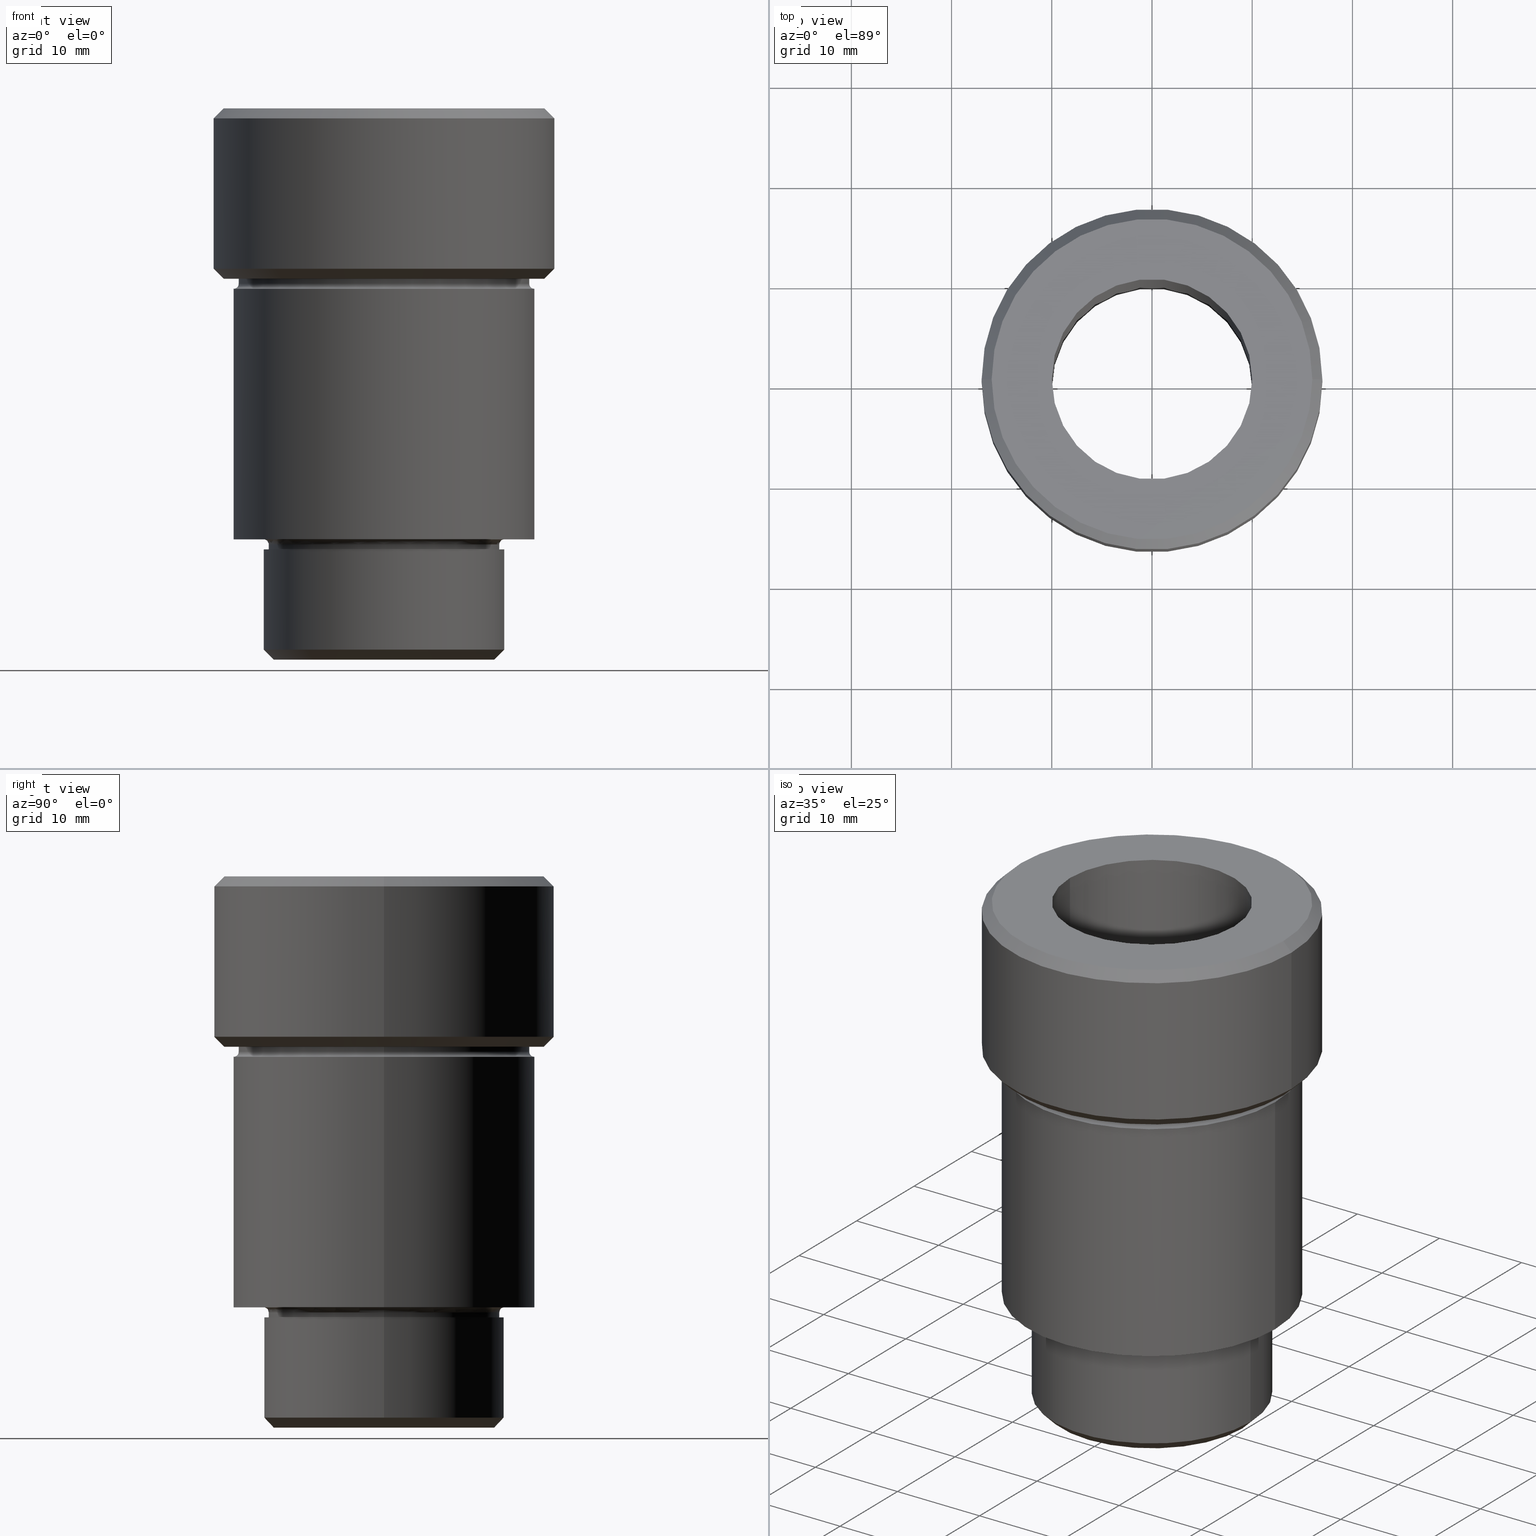
[diagram: canonical four-view strip — front | top / right | iso, engineering-drawing reading convention]
A machine part, canonical four-view strip (front | top / right | iso — engineering-drawing reading convention). The complete STEP part file that produces these views, byte-faithful:
ISO-10303-21;
HEADER;
FILE_DESCRIPTION (( 'STEP AP203' ),
    '1' );
FILE_NAME ('9258.STEP',
    '2024-01-08T12:25:38',
    ( '' ),
    ( '' ),
    'SwSTEP 2.0',
    'SolidWorks 2019',
    '' );
FILE_SCHEMA (( 'CONFIG_CONTROL_DESIGN' ));
ENDSEC;

DATA;
#1 = CARTESIAN_POINT ( 'NONE',  ( 17.00000000000000000, 0.000000000000000000, -16.00000000000001066 ) ) ;
#2 = DIRECTION ( 'NONE',  ( -0.000000000000000000, -0.000000000000000000, 1.000000000000000000 ) ) ;
#3 = DIRECTION ( 'NONE',  ( 1.000000000000000000, 0.000000000000000000, 0.000000000000000000 ) ) ;
#4 = FACE_BOUND ( 'NONE', #265, .T. ) ;
#5 = EDGE_CURVE ( 'NONE', #298, #553, #439, .T. ) ;
#6 = LINE ( 'NONE', #110, #425 ) ;
#7 = LINE ( 'NONE', #565, #424 ) ;
#8 = ORIENTED_EDGE ( 'NONE', *, *, #20, .F. ) ;
#9 = PERSON_AND_ORGANIZATION_ROLE ( 'creator' ) ;
#10 = CARTESIAN_POINT ( 'NONE',  ( -12.00000000000000000, 0.000000000000000000, -43.00000000000000000 ) ) ;
#11 = AXIS2_PLACEMENT_3D ( 'NONE', #159, #119, #176 ) ;
#12 = AXIS2_PLACEMENT_3D ( 'NONE', #413, #170, #606 ) ;
#13 = ORIENTED_EDGE ( 'NONE', *, *, #449, .T. ) ;
#14 = APPROVAL_DATE_TIME ( #446, #703 ) ;
#15 = DIRECTION ( 'NONE',  ( -0.000000000000000000, -0.000000000000000000, 1.000000000000000000 ) ) ;
#16 = DIRECTION ( 'NONE',  ( -0.000000000000000000, -0.000000000000000000, 1.000000000000000000 ) ) ;
#17 = CARTESIAN_POINT ( 'NONE',  ( 10.00000000000000000, 0.000000000000000000, -54.99999999999999289 ) ) ;
#18 = ORIENTED_EDGE ( 'NONE', *, *, #257, .F. ) ;
#19 = LINE ( 'NONE', #529, #710 ) ;
#20 = EDGE_CURVE ( 'NONE', #294, #766, #657, .T. ) ;
#21 = DIRECTION ( 'NONE',  ( -0.7071067811865524577, 8.659560562354993255E-17, 0.7071067811865426878 ) ) ;
#22 = VECTOR ( 'NONE', #404, 1000.000000000000000 ) ;
#23 = AXIS2_PLACEMENT_3D ( 'NONE', #293, #122, #3 ) ;
#24 = VERTEX_POINT ( 'NONE', #533 ) ;
#25 = AXIS2_PLACEMENT_3D ( 'NONE', #124, #779, #289 ) ;
#26 =( GEOMETRIC_REPRESENTATION_CONTEXT ( 3 ) GLOBAL_UNCERTAINTY_ASSIGNED_CONTEXT ( ( #192 ) ) GLOBAL_UNIT_ASSIGNED_CONTEXT ( ( #459, #645, #248 ) ) REPRESENTATION_CONTEXT ( 'NONE', 'WORKASPACE' ) );
#27 = DIRECTION ( 'NONE',  ( -0.000000000000000000, -0.000000000000000000, 1.000000000000000000 ) ) ;
#28 = DIRECTION ( 'NONE',  ( 1.000000000000000000, 0.000000000000000000, 0.000000000000000000 ) ) ;
#29 = DATE_TIME_ROLE ( 'creation_date' ) ;
#30 = ORIENTED_EDGE ( 'NONE', *, *, #406, .F. ) ;
#31 = EDGE_CURVE ( 'NONE', #553, #53, #467, .T. ) ;
#32 = ORIENTED_EDGE ( 'NONE', *, *, #401, .T. ) ;
#33 = DIRECTION ( 'NONE',  ( 0.000000000000000000, 0.000000000000000000, -1.000000000000000000 ) ) ;
#34 = CARTESIAN_POINT ( 'NONE',  ( -12.00000000000000355, 1.469576158976824342E-15, 0.000000000000000000 ) ) ;
#35 = EDGE_LOOP ( 'NONE', ( #91, #513, #18, #74 ) ) ;
#36 = MECHANICAL_CONTEXT ( 'NONE', #51, 'mechanical' ) ;
#37 = ORIENTED_EDGE ( 'NONE', *, *, #290, .F. ) ;
#38 = AXIS2_PLACEMENT_3D ( 'NONE', #307, #260, #692 ) ;
#39 = VECTOR ( 'NONE', #229, 1000.000000000000000 ) ;
#40 = ORIENTED_EDGE ( 'NONE', *, *, #759, .F. ) ;
#41 = FACE_OUTER_BOUND ( 'NONE', #133, .T. ) ;
#42 = CARTESIAN_POINT ( 'NONE',  ( 0.000000000000000000, 0.000000000000000000, -16.00000000000001066 ) ) ;
#43 = ADVANCED_FACE ( 'NONE', ( #177 ), #218, .T. ) ;
#44 = VECTOR ( 'NONE', #544, 999.9999999999998863 ) ;
#45 = CONICAL_SURFACE ( 'NONE', #194, 17.00000000000000000, 0.7853981633974536081 ) ;
#46 = LOCAL_TIME ( 13, 25, 38.00000000000000000, #386 ) ;
#47 = CALENDAR_DATE ( 2024, 8, 1 ) ;
#48 = EDGE_LOOP ( 'NONE', ( #505, #314, #588, #161 ) ) ;
#49 = DIRECTION ( 'NONE',  ( -0.000000000000000000, -0.000000000000000000, 1.000000000000000000 ) ) ;
#50 = EDGE_CURVE ( 'NONE', #695, #103, #562, .T. ) ;
#51 = APPLICATION_CONTEXT ( 'configuration controlled 3d designs of mechanical parts and assemblies' ) ;
#52 = DIRECTION ( 'NONE',  ( 0.7071067811865512365, 0.000000000000000000, 0.7071067811865439090 ) ) ;
#53 = VERTEX_POINT ( 'NONE', #557 ) ;
#54 = FACE_OUTER_BOUND ( 'NONE', #388, .T. ) ;
#55 = EDGE_CURVE ( 'NONE', #190, #766, #316, .T. ) ;
#56 = ORIENTED_EDGE ( 'NONE', *, *, #655, .F. ) ;
#57 = CARTESIAN_POINT ( 'NONE',  ( -12.00000000000000000, 0.000000000000000000, -43.50000000000000000 ) ) ;
#58 = AXIS2_PLACEMENT_3D ( 'NONE', #753, #445, #503 ) ;
#59 = CIRCLE ( 'NONE', #71, 11.50000000000000178 ) ;
#60 = EDGE_CURVE ( 'NONE', #699, #190, #678, .T. ) ;
#61 = DIRECTION ( 'NONE',  ( -0.000000000000000000, -1.000000000000000000, -0.000000000000000000 ) ) ;
#62 = DIRECTION ( 'NONE',  ( 1.000000000000000000, 0.000000000000000000, 0.000000000000000000 ) ) ;
#63 = ORIENTED_EDGE ( 'NONE', *, *, #243, .T. ) ;
#64 = DIRECTION ( 'NONE',  ( 0.000000000000000000, 0.000000000000000000, -1.000000000000000000 ) ) ;
#65 = DIRECTION ( 'NONE',  ( 1.000000000000000000, 0.000000000000000000, 0.000000000000000000 ) ) ;
#66 = ORIENTED_EDGE ( 'NONE', *, *, #655, .T. ) ;
#67 = DIRECTION ( 'NONE',  ( -0.000000000000000000, -0.000000000000000000, 1.000000000000000000 ) ) ;
#68 = LINE ( 'NONE', #556, #479 ) ;
#69 = AXIS2_PLACEMENT_3D ( 'NONE', #357, #483, #561 ) ;
#70 = DIRECTION ( 'NONE',  ( -0.000000000000000000, -0.000000000000000000, 1.000000000000000000 ) ) ;
#71 = AXIS2_PLACEMENT_3D ( 'NONE', #372, #15, #638 ) ;
#72 = ADVANCED_FACE ( 'NONE', ( #126 ), #362, .T. ) ;
#73 = DIRECTION ( 'NONE',  ( -0.000000000000000000, -0.000000000000000000, 1.000000000000000000 ) ) ;
#74 = ORIENTED_EDGE ( 'NONE', *, *, #647, .F. ) ;
#75 = DIRECTION ( 'NONE',  ( 1.000000000000000000, 0.000000000000000000, 0.000000000000000000 ) ) ;
#76 = CARTESIAN_POINT ( 'NONE',  ( 0.000000000000000000, 0.000000000000000000, -43.50000000000000000 ) ) ;
#77 = DIRECTION ( 'NONE',  ( 1.000000000000000000, 0.000000000000000000, 0.000000000000000000 ) ) ;
#78 = DIRECTION ( 'NONE',  ( -0.000000000000000000, -0.000000000000000000, 1.000000000000000000 ) ) ;
#79 = COORDINATED_UNIVERSAL_TIME_OFFSET ( 1, 0, .AHEAD. ) ;
#80 = CIRCLE ( 'NONE', #717, 12.00000000000000000 ) ;
#81 = EDGE_CURVE ( 'NONE', #294, #699, #180, .T. ) ;
#82 = AXIS2_PLACEMENT_3D ( 'NONE', #520, #16, #250 ) ;
#83 = AXIS2_PLACEMENT_3D ( 'NONE', #259, #509, #315 ) ;
#84 = APPROVAL_PERSON_ORGANIZATION ( #303, #703, #636 ) ;
#85 = FACE_BOUND ( 'NONE', #747, .T. ) ;
#86 = PERSON_AND_ORGANIZATION_ROLE ( 'design_supplier' ) ;
#87 = EDGE_LOOP ( 'NONE', ( #210, #253 ) ) ;
#88 = EDGE_LOOP ( 'NONE', ( #786, #715 ) ) ;
#89 = DIRECTION ( 'NONE',  ( 1.000000000000000000, 0.000000000000000000, 0.000000000000000000 ) ) ;
#90 = VERTEX_POINT ( 'NONE', #432 ) ;
#91 = ORIENTED_EDGE ( 'NONE', *, *, #406, .T. ) ;
#92 = DIRECTION ( 'NONE',  ( 1.000000000000000000, 0.000000000000000000, 0.000000000000000000 ) ) ;
#93 = CARTESIAN_POINT ( 'NONE',  ( 0.000000000000000000, 0.000000000000000000, -44.00000000000000000 ) ) ;
#94 = PERSON_AND_ORGANIZATION ( #429, #582 ) ;
#95 = CARTESIAN_POINT ( 'NONE',  ( -10.00000000000000000, 1.224646799147353256E-15, -54.99999999999999289 ) ) ;
#96 = CIRCLE ( 'NONE', #142, 12.00000000000000178 ) ;
#97 = DIRECTION ( 'NONE',  ( 0.000000000000000000, 0.000000000000000000, -1.000000000000000000 ) ) ;
#98 = CONICAL_SURFACE ( 'NONE', #776, 17.00000000000000000, 0.7853981633974536081 ) ;
#99 = CC_DESIGN_APPROVAL ( #703, ( #773 ) ) ;
#100 = EDGE_CURVE ( 'NONE', #53, #216, #80, .T. ) ;
#101 = ORIENTED_EDGE ( 'NONE', *, *, #243, .F. ) ;
#102 = EDGE_CURVE ( 'NONE', #490, #90, #788, .T. ) ;
#103 = VERTEX_POINT ( 'NONE', #489 ) ;
#104 = CARTESIAN_POINT ( 'NONE',  ( 0.000000000000000000, 0.000000000000000000, -16.00000000000001066 ) ) ;
#105 = AXIS2_PLACEMENT_3D ( 'NONE', #676, #2, #410 ) ;
#106 = CIRCLE ( 'NONE', #570, 14.49999999999999822 ) ;
#107 = ORIENTED_EDGE ( 'NONE', *, *, #5, .F. ) ;
#108 = EDGE_CURVE ( 'NONE', #311, #136, #626, .T. ) ;
#109 = CARTESIAN_POINT ( 'NONE',  ( -15.99999999999999289, 0.000000000000000000, 0.000000000000000000 ) ) ;
#110 = CARTESIAN_POINT ( 'NONE',  ( 17.00000000000000000, 0.000000000000000000, 0.000000000000000000 ) ) ;
#111 = CARTESIAN_POINT ( 'NONE',  ( -17.00000000000000000, 2.081899558550500280E-15, -1.000000000000011324 ) ) ;
#112 = CARTESIAN_POINT ( 'NONE',  ( 0.000000000000000000, 0.000000000000000000, -54.99999999999999289 ) ) ;
#113 = ADVANCED_FACE ( 'NONE', ( #172 ), #454, .F. ) ;
#114 = CARTESIAN_POINT ( 'NONE',  ( 0.000000000000000000, 0.000000000000000000, 0.000000000000000000 ) ) ;
#115 = CARTESIAN_POINT ( 'NONE',  ( 0.000000000000000000, 0.000000000000000000, -43.00000000000000000 ) ) ;
#116 = ORIENTED_EDGE ( 'NONE', *, *, #732, .F. ) ;
#117 = FACE_OUTER_BOUND ( 'NONE', #226, .T. ) ;
#118 = AXIS2_PLACEMENT_3D ( 'NONE', #530, #769, #465 ) ;
#119 = DIRECTION ( 'NONE',  ( 0.000000000000000000, -1.000000000000000000, 0.000000000000000000 ) ) ;
#120 = EDGE_CURVE ( 'NONE', #402, #334, #193, .T. ) ;
#121 = LOCAL_TIME ( 13, 25, 38.00000000000000000, #765 ) ;
#122 = DIRECTION ( 'NONE',  ( -0.000000000000000000, -0.000000000000000000, 1.000000000000000000 ) ) ;
#123 = ORIENTED_EDGE ( 'NONE', *, *, #279, .F. ) ;
#124 = CARTESIAN_POINT ( 'NONE',  ( 0.000000000000000000, 11.50000000000000178, -44.00000000000000000 ) ) ;
#125 = ORIENTED_EDGE ( 'NONE', *, *, #313, .F. ) ;
#126 = FACE_OUTER_BOUND ( 'NONE', #643, .T. ) ;
#127 = ORIENTED_EDGE ( 'NONE', *, *, #141, .F. ) ;
#128 = EDGE_CURVE ( 'NONE', #553, #298, #551, .T. ) ;
#129 = FACE_OUTER_BOUND ( 'NONE', #325, .T. ) ;
#130 = PLANE ( 'NONE',  #495 ) ;
#131 = AXIS2_PLACEMENT_3D ( 'NONE', #625, #784, #718 ) ;
#132 = CIRCLE ( 'NONE', #143, 17.00000000000000000 ) ;
#133 = EDGE_LOOP ( 'NONE', ( #646, #149 ) ) ;
#134 = CARTESIAN_POINT ( 'NONE',  ( 0.000000000000000000, 0.000000000000000000, -16.00000000000001066 ) ) ;
#135 = DIRECTION ( 'NONE',  ( 1.000000000000000000, 0.000000000000000000, 0.000000000000000000 ) ) ;
#136 = VERTEX_POINT ( 'NONE', #764 ) ;
#137 = FACE_OUTER_BOUND ( 'NONE', #782, .T. ) ;
#138 = EDGE_CURVE ( 'NONE', #627, #648, #567, .T. ) ;
#139 = ORIENTED_EDGE ( 'NONE', *, *, #725, .T. ) ;
#140 = CARTESIAN_POINT ( 'NONE',  ( 0.000000000000000000, 0.000000000000000000, 0.000000000000000000 ) ) ;
#141 = EDGE_CURVE ( 'NONE', #568, #563, #96, .T. ) ;
#142 = AXIS2_PLACEMENT_3D ( 'NONE', #93, #468, #337 ) ;
#143 = AXIS2_PLACEMENT_3D ( 'NONE', #408, #473, #354 ) ;
#144 = ORIENTED_EDGE ( 'NONE', *, *, #720, .T. ) ;
#145 = LOCAL_TIME ( 13, 25, 38.00000000000000000, #287 ) ;
#146 = CARTESIAN_POINT ( 'NONE',  ( 0.000000000000000000, 15.00000000000000355, -43.00000000000000000 ) ) ;
#147 = EDGE_LOOP ( 'NONE', ( #237, #632, #204, #713 ) ) ;
#148 = CYLINDRICAL_SURFACE ( 'NONE', #651, 17.00000000000000000 ) ;
#149 = ORIENTED_EDGE ( 'NONE', *, *, #160, .F. ) ;
#150 = VERTEX_POINT ( 'NONE', #275 ) ;
#151 = FACE_OUTER_BOUND ( 'NONE', #35, .T. ) ;
#152 = CARTESIAN_POINT ( 'NONE',  ( 0.000000000000000000, 0.000000000000000000, -18.00000000000000000 ) ) ;
#153 = PERSON_AND_ORGANIZATION_ROLE ( 'creator' ) ;
#154 = EDGE_LOOP ( 'NONE', ( #8, #123, #381, #352 ) ) ;
#155 = EDGE_CURVE ( 'NONE', #705, #150, #775, .T. ) ;
#156 = CALENDAR_DATE ( 2024, 8, 1 ) ;
#157 = VECTOR ( 'NONE', #21, 1000.000000000000000 ) ;
#158 = APPROVAL ( #264, 'NEUR�EN�' ) ;
#159 = CARTESIAN_POINT ( 'NONE',  ( 15.00000000000000000, 0.000000000000000000, -17.49999999999999645 ) ) ;
#160 = EDGE_CURVE ( 'NONE', #150, #705, #405, .T. ) ;
#161 = ORIENTED_EDGE ( 'NONE', *, *, #576, .F. ) ;
#162 = DIRECTION ( 'NONE',  ( 0.000000000000000000, 0.000000000000000000, -1.000000000000000000 ) ) ;
#163 = DIRECTION ( 'NONE',  ( -1.000000000000000000, 0.000000000000000000, 0.000000000000000000 ) ) ;
#164 = COORDINATED_UNIVERSAL_TIME_OFFSET ( 1, 0, .AHEAD. ) ;
#165 = CC_DESIGN_PERSON_AND_ORGANIZATION_ASSIGNMENT ( #284, #545, ( #442 ) ) ;
#166 = ORIENTED_EDGE ( 'NONE', *, *, #532, .F. ) ;
#167 = CARTESIAN_POINT ( 'NONE',  ( 14.49999999999999822, 0.000000000000000000, 0.000000000000000000 ) ) ;
#168 = APPROVAL_DATE_TIME ( #541, #492 ) ;
#169 = ORIENTED_EDGE ( 'NONE', *, *, #401, .F. ) ;
#170 = DIRECTION ( 'NONE',  ( -0.000000000000000000, -0.000000000000000000, 1.000000000000000000 ) ) ;
#171 = CYLINDRICAL_SURFACE ( 'NONE', #510, 15.00000000000000178 ) ;
#172 = FACE_OUTER_BOUND ( 'NONE', #184, .T. ) ;
#173 = ORIENTED_EDGE ( 'NONE', *, *, #55, .F. ) ;
#174 = DIRECTION ( 'NONE',  ( -0.000000000000000000, -0.000000000000000000, 1.000000000000000000 ) ) ;
#175 = EDGE_CURVE ( 'NONE', #453, #648, #281, .T. ) ;
#176 = DIRECTION ( 'NONE',  ( 0.000000000000000000, 0.000000000000000000, -1.000000000000000000 ) ) ;
#177 = FACE_OUTER_BOUND ( 'NONE', #395, .T. ) ;
#178 = ORIENTED_EDGE ( 'NONE', *, *, #120, .F. ) ;
#179 = CARTESIAN_POINT ( 'NONE',  ( 0.000000000000000000, 0.000000000000000000, 0.000000000000000000 ) ) ;
#180 = CIRCLE ( 'NONE', #601, 10.00000000000000000 ) ;
#181 = CIRCLE ( 'NONE', #305, 12.00000000000000355 ) ;
#182 = AXIS2_PLACEMENT_3D ( 'NONE', #548, #64, #787 ) ;
#183 = CARTESIAN_POINT ( 'NONE',  ( 14.49999999999999822, 0.000000000000000000, -17.00000000000000000 ) ) ;
#184 = EDGE_LOOP ( 'NONE', ( #559, #542, #642, #228 ) ) ;
#185 = ADVANCED_FACE ( 'NONE', ( #301 ), #355, .F. ) ;
#186 = DIRECTION ( 'NONE',  ( -1.224646799147353207E-16, 1.000000000000000000, 0.000000000000000000 ) ) ;
#187 = EDGE_LOOP ( 'NONE', ( #629, #63 ) ) ;
#188 = ORIENTED_EDGE ( 'NONE', *, *, #196, .T. ) ;
#189 = LINE ( 'NONE', #436, #208 ) ;
#190 = VERTEX_POINT ( 'NONE', #736 ) ;
#191 = DIRECTION ( 'NONE',  ( 1.000000000000000000, 0.000000000000000000, 0.000000000000000000 ) ) ;
#192 = UNCERTAINTY_MEASURE_WITH_UNIT (LENGTH_MEASURE( 1.000000000000000082E-05 ), #459, 'distance_accuracy_value', 'NONE');
#193 = CIRCLE ( 'NONE', #344, 12.00000000000000355 ) ;
#194 = AXIS2_PLACEMENT_3D ( 'NONE', #42, #217, #89 ) ;
#195 = ORIENTED_EDGE ( 'NONE', *, *, #426, .T. ) ;
#196 = EDGE_CURVE ( 'NONE', #705, #648, #7, .T. ) ;
#197 = DIRECTION ( 'NONE',  ( 1.000000000000000000, 0.000000000000000000, 0.000000000000000000 ) ) ;
#198 = PERSON_AND_ORGANIZATION_ROLE ( 'design_owner' ) ;
#199 = VERTEX_POINT ( 'NONE', #183 ) ;
#200 = PRODUCT_RELATED_PRODUCT_CATEGORY ( 'detail', '', ( #332 ) ) ;
#201 = LINE ( 'NONE', #205, #157 ) ;
#202 = APPROVAL_DATE_TIME ( #650, #158 ) ;
#203 = ORIENTED_EDGE ( 'NONE', *, *, #283, .T. ) ;
#204 = ORIENTED_EDGE ( 'NONE', *, *, #5, .T. ) ;
#205 = CARTESIAN_POINT ( 'NONE',  ( -12.00000000000000355, 1.469576158976824342E-15, -54.00000000000001421 ) ) ;
#206 = AXIS2_PLACEMENT_3D ( 'NONE', #341, #280, #278 ) ;
#207 = DIRECTION ( 'NONE',  ( -0.000000000000000000, -0.000000000000000000, 1.000000000000000000 ) ) ;
#208 = VECTOR ( 'NONE', #690, 1000.000000000000000 ) ;
#209 = AXIS2_PLACEMENT_3D ( 'NONE', #234, #716, #286 ) ;
#210 = ORIENTED_EDGE ( 'NONE', *, *, #732, .T. ) ;
#211 = AXIS2_PLACEMENT_3D ( 'NONE', #521, #693, #428 ) ;
#212 = ORIENTED_EDGE ( 'NONE', *, *, #128, .F. ) ;
#213 = CARTESIAN_POINT ( 'NONE',  ( 0.000000000000000000, 0.000000000000000000, 0.000000000000000000 ) ) ;
#214 = CARTESIAN_POINT ( 'NONE',  ( 0.000000000000000000, 0.000000000000000000, 0.000000000000000000 ) ) ;
#215 = EDGE_CURVE ( 'NONE', #90, #402, #68, .T. ) ;
#216 = VERTEX_POINT ( 'NONE', #10 ) ;
#217 = DIRECTION ( 'NONE',  ( -0.000000000000000000, -0.000000000000000000, 1.000000000000000000 ) ) ;
#218 = CONICAL_SURFACE ( 'NONE', #669, 12.00000000000000355, 0.7853981633974552734 ) ;
#219 = AXIS2_PLACEMENT_3D ( 'NONE', #535, #393, #540 ) ;
#220 = TOROIDAL_SURFACE ( 'NONE', #615, 12.00000000000000000, 0.5000000000000000000 ) ;
#221 = APPROVAL_PERSON_ORGANIZATION ( #583, #158, #324 ) ;
#222 = EDGE_CURVE ( 'NONE', #366, #24, #414, .T. ) ;
#223 = ORIENTED_EDGE ( 'NONE', *, *, #222, .T. ) ;
#224 = CARTESIAN_POINT ( 'NONE',  ( -15.00000000000000000, 1.836970198721029983E-15, -18.00000000000000000 ) ) ;
#225 = FACE_OUTER_BOUND ( 'NONE', #48, .T. ) ;
#226 = EDGE_LOOP ( 'NONE', ( #610, #139, #667, #101 ) ) ;
#227 = CARTESIAN_POINT ( 'NONE',  ( 10.00000000000000000, 0.000000000000000000, -54.99999999999999289 ) ) ;
#228 = ORIENTED_EDGE ( 'NONE', *, *, #175, .F. ) ;
#229 = DIRECTION ( 'NONE',  ( -0.000000000000000000, -0.000000000000000000, 1.000000000000000000 ) ) ;
#230 = AXIS2_PLACEMENT_3D ( 'NONE', #140, #73, #135 ) ;
#231 = DIRECTION ( 'NONE',  ( 1.000000000000000000, 0.000000000000000000, 0.000000000000000000 ) ) ;
#232 = CARTESIAN_POINT ( 'NONE',  ( 0.000000000000000000, 0.000000000000000000, -54.99999999999999289 ) ) ;
#233 = EDGE_CURVE ( 'NONE', #766, #190, #534, .T. ) ;
#234 = CARTESIAN_POINT ( 'NONE',  ( 0.000000000000000000, 0.000000000000000000, -54.99999999999999289 ) ) ;
#235 = DIRECTION ( 'NONE',  ( 0.7071067811865524577, 0.000000000000000000, 0.7071067811865426878 ) ) ;
#236 = DIRECTION ( 'NONE',  ( -0.000000000000000000, -0.000000000000000000, 1.000000000000000000 ) ) ;
#237 = ORIENTED_EDGE ( 'NONE', *, *, #538, .T. ) ;
#238 = LINE ( 'NONE', #167, #39 ) ;
#239 = CARTESIAN_POINT ( 'NONE',  ( -17.00000000000000000, 2.081899558550500280E-15, -16.00000000000001066 ) ) ;
#240 = DIRECTION ( 'NONE',  ( -0.000000000000000000, -0.000000000000000000, 1.000000000000000000 ) ) ;
#241 = APPLICATION_PROTOCOL_DEFINITION ( 'international standard', 'config_control_design', 1994, #767 ) ;
#242 = TOROIDAL_SURFACE ( 'NONE', #524, 12.00000000000000000, 0.5000000000000000000 ) ;
#243 = EDGE_CURVE ( 'NONE', #103, #199, #774, .T. ) ;
#244 = AXIS2_PLACEMENT_3D ( 'NONE', #146, #97, #460 ) ;
#245 = CARTESIAN_POINT ( 'NONE',  ( 0.000000000000000000, 0.000000000000000000, -17.00000000000000000 ) ) ;
#246 = CARTESIAN_POINT ( 'NONE',  ( 0.000000000000000000, 0.000000000000000000, -54.00000000000001421 ) ) ;
#247 = EDGE_LOOP ( 'NONE', ( #376, #144, #288, #268 ) ) ;
#248 =( NAMED_UNIT ( * ) SI_UNIT ( $, .STERADIAN. ) SOLID_ANGLE_UNIT ( ) );
#249 = FACE_BOUND ( 'NONE', #187, .T. ) ;
#250 = DIRECTION ( 'NONE',  ( 1.000000000000000000, 0.000000000000000000, 0.000000000000000000 ) ) ;
#251 = CC_DESIGN_PERSON_AND_ORGANIZATION_ASSIGNMENT ( #94, #198, ( #332 ) ) ;
#252 = DIRECTION ( 'NONE',  ( 0.7071067811865463515, 8.659560562354919300E-17, -0.7071067811865487940 ) ) ;
#253 = ORIENTED_EDGE ( 'NONE', *, *, #102, .T. ) ;
#254 = DIRECTION ( 'NONE',  ( -0.000000000000000000, -0.000000000000000000, 1.000000000000000000 ) ) ;
#255 = ORIENTED_EDGE ( 'NONE', *, *, #100, .F. ) ;
#256 = CARTESIAN_POINT ( 'NONE',  ( 0.000000000000000000, 0.000000000000000000, 0.000000000000000000 ) ) ;
#257 = EDGE_CURVE ( 'NONE', #199, #103, #319, .T. ) ;
#258 = VERTEX_POINT ( 'NONE', #111 ) ;
#259 = CARTESIAN_POINT ( 'NONE',  ( 0.000000000000000000, 0.000000000000000000, -17.00000000000000000 ) ) ;
#260 = DIRECTION ( 'NONE',  ( -0.000000000000000000, -0.000000000000000000, 1.000000000000000000 ) ) ;
#261 = CIRCLE ( 'NONE', #660, 10.00000000000000000 ) ;
#262 = ADVANCED_FACE ( 'NONE', ( #488, #727 ), #351, .T. ) ;
#263 = CARTESIAN_POINT ( 'NONE',  ( 0.000000000000000000, 0.000000000000000000, -54.00000000000001421 ) ) ;
#264 = APPROVAL_STATUS ( 'not_yet_approved' ) ;
#265 = EDGE_LOOP ( 'NONE', ( #416, #485 ) ) ;
#266 = CARTESIAN_POINT ( 'NONE',  ( 0.000000000000000000, 0.000000000000000000, -44.00000000000000000 ) ) ;
#267 = CALENDAR_DATE ( 2024, 8, 1 ) ;
#268 = ORIENTED_EDGE ( 'NONE', *, *, #514, .F. ) ;
#269 = EDGE_LOOP ( 'NONE', ( #347, #107, #755, #255 ) ) ;
#270 = ADVANCED_FACE ( 'NONE', ( #670 ), #171, .T. ) ;
#271 = CONICAL_SURFACE ( 'NONE', #367, 12.00000000000000355, 0.7853981633974552734 ) ;
#272 = CIRCLE ( 'NONE', #209, 11.00000000000001066 ) ;
#273 = EDGE_LOOP ( 'NONE', ( #584, #32, #345, #528 ) ) ;
#274 = ORIENTED_EDGE ( 'NONE', *, *, #396, .F. ) ;
#275 = CARTESIAN_POINT ( 'NONE',  ( -15.00000000000000533, 1.836970198721030378E-15, -43.00000000000000000 ) ) ;
#276 = DIRECTION ( 'NONE',  ( -0.000000000000000000, -0.000000000000000000, 1.000000000000000000 ) ) ;
#277 = CARTESIAN_POINT ( 'NONE',  ( 14.49999999999999822, 0.000000000000000000, -17.49999999999999645 ) ) ;
#278 = DIRECTION ( 'NONE',  ( -1.000000000000000000, 0.000000000000000000, 0.000000000000000000 ) ) ;
#279 = EDGE_CURVE ( 'NONE', #699, #294, #261, .T. ) ;
#280 = DIRECTION ( 'NONE',  ( 0.000000000000000000, 0.000000000000000000, -1.000000000000000000 ) ) ;
#281 = CIRCLE ( 'NONE', #11, 0.5000000000000004441 ) ;
#282 = VECTOR ( 'NONE', #462, 1000.000000000000000 ) ;
#283 = EDGE_CURVE ( 'NONE', #311, #760, #745, .T. ) ;
#284 = PERSON_AND_ORGANIZATION ( #429, #582 ) ;
#285 = ORIENTED_EDGE ( 'NONE', *, *, #31, .T. ) ;
#286 = DIRECTION ( 'NONE',  ( -1.000000000000000000, 0.000000000000000000, 0.000000000000000000 ) ) ;
#287 = COORDINATED_UNIVERSAL_TIME_OFFSET ( 1, 0, .AHEAD. ) ;
#288 = ORIENTED_EDGE ( 'NONE', *, *, #631, .T. ) ;
#289 = DIRECTION ( 'NONE',  ( 1.000000000000000000, 0.000000000000000000, 0.000000000000000000 ) ) ;
#290 = EDGE_CURVE ( 'NONE', #366, #435, #637, .T. ) ;
#291 = CYLINDRICAL_SURFACE ( 'NONE', #12, 10.00000000000000000 ) ;
#292 = VECTOR ( 'NONE', #52, 999.9999999999998863 ) ;
#293 = CARTESIAN_POINT ( 'NONE',  ( 0.000000000000000000, 0.000000000000000000, -17.49999999999999645 ) ) ;
#294 = VERTEX_POINT ( 'NONE', #318 ) ;
#295 = CYLINDRICAL_SURFACE ( 'NONE', #762, 14.49999999999999822 ) ;
#296 = DIRECTION ( 'NONE',  ( -0.000000000000000000, -0.000000000000000000, 1.000000000000000000 ) ) ;
#297 = CARTESIAN_POINT ( 'NONE',  ( 0.000000000000000000, 0.000000000000000000, -54.99999999999999289 ) ) ;
#298 = VERTEX_POINT ( 'NONE', #740 ) ;
#299 = DIRECTION ( 'NONE',  ( 1.000000000000000000, 0.000000000000000000, 0.000000000000000000 ) ) ;
#300 = EDGE_CURVE ( 'NONE', #681, #298, #189, .T. ) ;
#301 = FACE_OUTER_BOUND ( 'NONE', #309, .T. ) ;
#302 = ORIENTED_EDGE ( 'NONE', *, *, #698, .F. ) ;
#303 = PERSON_AND_ORGANIZATION ( #429, #582 ) ;
#304 = ADVANCED_FACE ( 'NONE', ( #696 ), #242, .F. ) ;
#305 = AXIS2_PLACEMENT_3D ( 'NONE', #687, #751, #448 ) ;
#306 = VECTOR ( 'NONE', #207, 1000.000000000000000 ) ;
#307 = CARTESIAN_POINT ( 'NONE',  ( 0.000000000000000000, 0.000000000000000000, -43.00000000000000000 ) ) ;
#308 = CARTESIAN_POINT ( 'NONE',  ( 15.99999999999999289, 1.959434878635764343E-15, 0.000000000000000000 ) ) ;
#309 = EDGE_LOOP ( 'NONE', ( #166, #30, #443, #328 ) ) ;
#310 = CARTESIAN_POINT ( 'NONE',  ( -16.00000000000000000, 2.020667218593133100E-15, -17.00000000000000000 ) ) ;
#311 = VERTEX_POINT ( 'NONE', #441 ) ;
#312 = DIRECTION ( 'NONE',  ( 0.000000000000000000, 0.000000000000000000, -1.000000000000000000 ) ) ;
#313 = EDGE_CURVE ( 'NONE', #334, #402, #181, .T. ) ;
#314 = ORIENTED_EDGE ( 'NONE', *, *, #759, .T. ) ;
#315 = DIRECTION ( 'NONE',  ( -1.000000000000000000, 0.000000000000000000, 0.000000000000000000 ) ) ;
#316 = CIRCLE ( 'NONE', #772, 10.00000000000000000 ) ;
#317 = AXIS2_PLACEMENT_3D ( 'NONE', #741, #186, #728 ) ;
#318 = CARTESIAN_POINT ( 'NONE',  ( -10.00000000000000000, 1.224646799147353256E-15, -54.99999999999999289 ) ) ;
#319 = CIRCLE ( 'NONE', #131, 14.49999999999999822 ) ;
#320 = DATE_AND_TIME ( #450, #618 ) ;
#321 = APPROVAL_PERSON_ORGANIZATION ( #602, #492, #411 ) ;
#322 = FACE_OUTER_BOUND ( 'NONE', #523, .T. ) ;
#323 = CARTESIAN_POINT ( 'NONE',  ( 12.00000000000000355, 0.000000000000000000, -54.00000000000001421 ) ) ;
#324 = APPROVAL_ROLE ( '' ) ;
#325 = EDGE_LOOP ( 'NONE', ( #37, #223, #302, #363 ) ) ;
#326 = EDGE_CURVE ( 'NONE', #563, #568, #382, .T. ) ;
#327 = CARTESIAN_POINT ( 'NONE',  ( 17.00000000000000000, 0.000000000000000000, -16.00000000000001066 ) ) ;
#328 = ORIENTED_EDGE ( 'NONE', *, *, #600, .T. ) ;
#329 = CYLINDRICAL_SURFACE ( 'NONE', #339, 12.00000000000000355 ) ;
#330 = CARTESIAN_POINT ( 'NONE',  ( 0.000000000000000000, 0.000000000000000000, -44.00000000000000000 ) ) ;
#331 = ORIENTED_EDGE ( 'NONE', *, *, #215, .T. ) ;
#332 = PRODUCT ( '9258', '9258', '', ( #36 ) ) ;
#333 = CC_DESIGN_PERSON_AND_ORGANIZATION_ASSIGNMENT ( #564, #9, ( #604 ) ) ;
#334 = VERTEX_POINT ( 'NONE', #744 ) ;
#335 = FACE_OUTER_BOUND ( 'NONE', #147, .T. ) ;
#336 = CLOSED_SHELL ( 'NONE', ( #707, #113, #418, #689, #558, #358, #475, #487, #612, #466, #349, #262, #340, #438, #549, #748, #270, #593, #665, #624, #72, #43, #457, #770, #304, #185, #677 ) ) ;
#337 = DIRECTION ( 'NONE',  ( 1.000000000000000000, 0.000000000000000000, 0.000000000000000000 ) ) ;
#338 = AXIS2_PLACEMENT_3D ( 'NONE', #266, #644, #374 ) ;
#339 = AXIS2_PLACEMENT_3D ( 'NONE', #589, #392, #92 ) ;
#340 = ADVANCED_FACE ( 'NONE', ( #85, #137 ), #130, .T. ) ;
#341 = CARTESIAN_POINT ( 'NONE',  ( 0.000000000000000000, 0.000000000000000000, -43.50000000000000000 ) ) ;
#342 = FACE_OUTER_BOUND ( 'NONE', #572, .T. ) ;
#343 = DIRECTION ( 'NONE',  ( 1.000000000000000000, 0.000000000000000000, 0.000000000000000000 ) ) ;
#344 = AXIS2_PLACEMENT_3D ( 'NONE', #415, #236, #419 ) ;
#345 = ORIENTED_EDGE ( 'NONE', *, *, #514, .T. ) ;
#346 = CARTESIAN_POINT ( 'NONE',  ( 15.00000000000000355, 0.000000000000000000, -43.00000000000000000 ) ) ;
#347 = ORIENTED_EDGE ( 'NONE', *, *, #31, .F. ) ;
#348 = DIRECTION ( 'NONE',  ( -0.000000000000000000, -0.000000000000000000, 1.000000000000000000 ) ) ;
#349 = ADVANCED_FACE ( 'NONE', ( #634 ), #148, .T. ) ;
#350 = CARTESIAN_POINT ( 'NONE',  ( 0.000000000000000000, 0.000000000000000000, 0.000000000000000000 ) ) ;
#351 = PLANE ( 'NONE',  #733 ) ;
#352 = ORIENTED_EDGE ( 'NONE', *, *, #55, .T. ) ;
#353 = DIRECTION ( 'NONE',  ( -1.000000000000000000, 0.000000000000000000, 0.000000000000000000 ) ) ;
#354 = DIRECTION ( 'NONE',  ( 1.000000000000000000, 0.000000000000000000, 0.000000000000000000 ) ) ;
#355 = TOROIDAL_SURFACE ( 'NONE', #105, 15.00000000000000000, 0.5000000000000000000 ) ;
#356 = CIRCLE ( 'NONE', #511, 15.00000000000000000 ) ;
#357 = CARTESIAN_POINT ( 'NONE',  ( 0.000000000000000000, 0.000000000000000000, 0.000000000000000000 ) ) ;
#358 = ADVANCED_FACE ( 'NONE', ( #581 ), #271, .T. ) ;
#359 = DIRECTION ( 'NONE',  ( 0.000000000000000000, 0.000000000000000000, 1.000000000000000000 ) ) ;
#360 = ORIENTED_EDGE ( 'NONE', *, *, #155, .T. ) ;
#361 = CARTESIAN_POINT ( 'NONE',  ( 11.50000000000000178, 0.000000000000000000, -44.00000000000000000 ) ) ;
#362 = CYLINDRICAL_SURFACE ( 'NONE', #469, 12.00000000000000355 ) ;
#363 = ORIENTED_EDGE ( 'NONE', *, *, #504, .F. ) ;
#364 = CARTESIAN_POINT ( 'NONE',  ( -10.00000000000000000, 1.224646799147353256E-15, 0.000000000000000000 ) ) ;
#365 = DIRECTION ( 'NONE',  ( 1.000000000000000000, 0.000000000000000000, 0.000000000000000000 ) ) ;
#366 = VERTEX_POINT ( 'NONE', #310 ) ;
#367 = AXIS2_PLACEMENT_3D ( 'NONE', #263, #516, #191 ) ;
#368 = AXIS2_PLACEMENT_3D ( 'NONE', #539, #654, #780 ) ;
#369 = CARTESIAN_POINT ( 'NONE',  ( 0.000000000000000000, 0.000000000000000000, -16.00000000000001066 ) ) ;
#370 = CC_DESIGN_APPROVAL ( #158, ( #604 ) ) ;
#371 = ORIENTED_EDGE ( 'NONE', *, *, #233, .F. ) ;
#372 = CARTESIAN_POINT ( 'NONE',  ( 0.000000000000000000, 0.000000000000000000, -44.00000000000000000 ) ) ;
#373 = EDGE_CURVE ( 'NONE', #490, #334, #201, .T. ) ;
#374 = DIRECTION ( 'NONE',  ( 1.000000000000000000, 0.000000000000000000, 0.000000000000000000 ) ) ;
#375 = DESIGN_CONTEXT ( 'detailed design', #767, 'design' ) ;
#376 = ORIENTED_EDGE ( 'NONE', *, *, #698, .T. ) ;
#377 = CARTESIAN_POINT ( 'NONE',  ( 0.000000000000000000, 0.000000000000000000, -1.000000000000011324 ) ) ;
#378 = DIRECTION ( 'NONE',  ( 0.000000000000000000, 0.000000000000000000, 1.000000000000000000 ) ) ;
#379 = CC_DESIGN_DATE_AND_TIME_ASSIGNMENT ( #320, #29, ( #773 ) ) ;
#380 = PERSON_AND_ORGANIZATION ( #429, #582 ) ;
#381 = ORIENTED_EDGE ( 'NONE', *, *, #60, .T. ) ;
#382 = CIRCLE ( 'NONE', #338, 12.00000000000000178 ) ;
#383 = DIRECTION ( 'NONE',  ( -1.000000000000000000, 0.000000000000000000, 0.000000000000000000 ) ) ;
#384 = AXIS2_PLACEMENT_3D ( 'NONE', #377, #686, #75 ) ;
#385 = CC_DESIGN_SECURITY_CLASSIFICATION ( #442, ( #604 ) ) ;
#386 = COORDINATED_UNIVERSAL_TIME_OFFSET ( 1, 0, .AHEAD. ) ;
#387 = EDGE_CURVE ( 'NONE', #216, #53, #579, .T. ) ;
#388 = EDGE_LOOP ( 'NONE', ( #688, #587, #195, #433 ) ) ;
#389 = DIRECTION ( 'NONE',  ( -0.000000000000000000, -0.000000000000000000, 1.000000000000000000 ) ) ;
#390 = CC_DESIGN_PERSON_AND_ORGANIZATION_ASSIGNMENT ( #496, #86, ( #604 ) ) ;
#391 = ORIENTED_EDGE ( 'NONE', *, *, #60, .F. ) ;
#392 = DIRECTION ( 'NONE',  ( -0.000000000000000000, -0.000000000000000000, 1.000000000000000000 ) ) ;
#393 = DIRECTION ( 'NONE',  ( 0.000000000000000000, 0.000000000000000000, -1.000000000000000000 ) ) ;
#394 = FACE_OUTER_BOUND ( 'NONE', #437, .T. ) ;
#395 = EDGE_LOOP ( 'NONE', ( #508, #116, #331, #125 ) ) ;
#396 = EDGE_CURVE ( 'NONE', #760, #311, #592, .T. ) ;
#397 = CARTESIAN_POINT ( 'NONE',  ( -15.00000000000000178, 1.836970198721029983E-15, 0.000000000000000000 ) ) ;
#398 = CIRCLE ( 'NONE', #682, 17.00000000000000000 ) ;
#399 = VECTOR ( 'NONE', #27, 1000.000000000000000 ) ;
#400 = LINE ( 'NONE', #397, #282 ) ;
#401 = EDGE_CURVE ( 'NONE', #24, #591, #398, .T. ) ;
#402 = VERTEX_POINT ( 'NONE', #323 ) ;
#403 = DIRECTION ( 'NONE',  ( -0.000000000000000000, -0.000000000000000000, 1.000000000000000000 ) ) ;
#404 = DIRECTION ( 'NONE',  ( -0.000000000000000000, -0.000000000000000000, 1.000000000000000000 ) ) ;
#405 = CIRCLE ( 'NONE', #614, 15.00000000000000355 ) ;
#406 = EDGE_CURVE ( 'NONE', #453, #695, #440, .T. ) ;
#407 = ORIENTED_EDGE ( 'NONE', *, *, #573, .T. ) ;
#408 = CARTESIAN_POINT ( 'NONE',  ( 0.000000000000000000, 0.000000000000000000, -1.000000000000011324 ) ) ;
#409 = LOCAL_TIME ( 13, 25, 38.00000000000000000, #164 ) ;
#410 = DIRECTION ( 'NONE',  ( 1.000000000000000000, 0.000000000000000000, 0.000000000000000000 ) ) ;
#411 = APPROVAL_ROLE ( '' ) ;
#412 = ORIENTED_EDGE ( 'NONE', *, *, #373, .T. ) ;
#413 = CARTESIAN_POINT ( 'NONE',  ( 0.000000000000000000, 0.000000000000000000, -54.99999999999999289 ) ) ;
#414 = LINE ( 'NONE', #239, #44 ) ;
#415 = CARTESIAN_POINT ( 'NONE',  ( 0.000000000000000000, 0.000000000000000000, -54.00000000000001421 ) ) ;
#416 = ORIENTED_EDGE ( 'NONE', *, *, #538, .F. ) ;
#417 = DIRECTION ( 'NONE',  ( 1.000000000000000000, 0.000000000000000000, 0.000000000000000000 ) ) ;
#418 = ADVANCED_FACE ( 'NONE', ( #628 ), #220, .F. ) ;
#419 = DIRECTION ( 'NONE',  ( -1.000000000000000000, 0.000000000000000000, 0.000000000000000000 ) ) ;
#420 = VECTOR ( 'NONE', #613, 1000.000000000000000 ) ;
#421 = AXIS2_PLACEMENT_3D ( 'NONE', #256, #455, #640 ) ;
#422 = ORIENTED_EDGE ( 'NONE', *, *, #20, .T. ) ;
#423 = DIRECTION ( 'NONE',  ( -0.000000000000000000, -0.000000000000000000, 1.000000000000000000 ) ) ;
#424 = VECTOR ( 'NONE', #431, 1000.000000000000000 ) ;
#425 = VECTOR ( 'NONE', #478, 1000.000000000000000 ) ;
#426 = EDGE_CURVE ( 'NONE', #674, #553, #19, .T. ) ;
#427 = CARTESIAN_POINT ( 'NONE',  ( 0.000000000000000000, 0.000000000000000000, 0.000000000000000000 ) ) ;
#428 = DIRECTION ( 'NONE',  ( 1.000000000000000000, 0.000000000000000000, 0.000000000000000000 ) ) ;
#429 = PERSON ( 'NEUR�EN�', 'NEUR�EN�', 'NEUR�EN�', ('NEUR�EN�'), ('NEUR�EN�'), ('NEUR�EN�') ) ;
#430 = DIRECTION ( 'NONE',  ( 1.224646799147353207E-16, 1.000000000000000000, 0.000000000000000000 ) ) ;
#431 = DIRECTION ( 'NONE',  ( -0.000000000000000000, -0.000000000000000000, 1.000000000000000000 ) ) ;
#432 = CARTESIAN_POINT ( 'NONE',  ( 11.00000000000001066, 0.000000000000000000, -54.99999999999999289 ) ) ;
#433 = ORIENTED_EDGE ( 'NONE', *, *, #128, .T. ) ;
#434 = DIRECTION ( 'NONE',  ( -1.000000000000000000, 0.000000000000000000, -0.000000000000000000 ) ) ;
#435 = VERTEX_POINT ( 'NONE', #712 ) ;
#436 = CARTESIAN_POINT ( 'NONE',  ( -11.50000000000000000, 1.408343819019456176E-15, 0.000000000000000000 ) ) ;
#437 = EDGE_LOOP ( 'NONE', ( #683, #274, #66, #522 ) ) ;
#438 = ADVANCED_FACE ( 'NONE', ( #595 ), #709, .T. ) ;
#439 = CIRCLE ( 'NONE', #206, 11.50000000000000000 ) ;
#440 = CIRCLE ( 'NONE', #82, 14.49999999999999822 ) ;
#441 = CARTESIAN_POINT ( 'NONE',  ( 15.99999999999999289, 2.020667218593132311E-15, 0.000000000000000000 ) ) ;
#442 = SECURITY_CLASSIFICATION ( '', '', #735 ) ;
#443 = ORIENTED_EDGE ( 'NONE', *, *, #175, .T. ) ;
#444 = CARTESIAN_POINT ( 'NONE',  ( 12.00000000000000355, 0.000000000000000000, 0.000000000000000000 ) ) ;
#445 = DIRECTION ( 'NONE',  ( 0.000000000000000000, 0.000000000000000000, -1.000000000000000000 ) ) ;
#446 = DATE_AND_TIME ( #267, #46 ) ;
#447 = ORIENTED_EDGE ( 'NONE', *, *, #215, .F. ) ;
#448 = DIRECTION ( 'NONE',  ( -1.000000000000000000, 0.000000000000000000, 0.000000000000000000 ) ) ;
#449 = EDGE_CURVE ( 'NONE', #150, #627, #400, .T. ) ;
#450 = CALENDAR_DATE ( 2024, 8, 1 ) ;
#451 = ORIENTED_EDGE ( 'NONE', *, *, #108, .T. ) ;
#452 = CYLINDRICAL_SURFACE ( 'NONE', #537, 15.00000000000000178 ) ;
#453 = VERTEX_POINT ( 'NONE', #277 ) ;
#454 = TOROIDAL_SURFACE ( 'NONE', #23, 15.00000000000000000, 0.5000000000000000000 ) ;
#455 = DIRECTION ( 'NONE',  ( -0.000000000000000000, -0.000000000000000000, 1.000000000000000000 ) ) ;
#456 = VECTOR ( 'NONE', #668, 1000.000000000000000 ) ;
#457 = ADVANCED_FACE ( 'NONE', ( #701 ), #45, .T. ) ;
#458 = AXIS2_PLACEMENT_3D ( 'NONE', #214, #697, #517 ) ;
#459 =( LENGTH_UNIT ( ) NAMED_UNIT ( * ) SI_UNIT ( .MILLI., .METRE. ) );
#460 = DIRECTION ( 'NONE',  ( -1.000000000000000000, 0.000000000000000000, -0.000000000000000000 ) ) ;
#461 = ORIENTED_EDGE ( 'NONE', *, *, #233, .T. ) ;
#462 = DIRECTION ( 'NONE',  ( -0.000000000000000000, -0.000000000000000000, 1.000000000000000000 ) ) ;
#463 = ORIENTED_EDGE ( 'NONE', *, *, #573, .F. ) ;
#464 = DIRECTION ( 'NONE',  ( -0.000000000000000000, -0.000000000000000000, 1.000000000000000000 ) ) ;
#465 = DIRECTION ( 'NONE',  ( 1.000000000000000000, 0.000000000000000000, 0.000000000000000000 ) ) ;
#466 = ADVANCED_FACE ( 'NONE', ( #151 ), #652, .T. ) ;
#467 = CIRCLE ( 'NONE', #317, 0.5000000000000004441 ) ;
#468 = DIRECTION ( 'NONE',  ( -0.000000000000000000, -0.000000000000000000, 1.000000000000000000 ) ) ;
#469 = AXIS2_PLACEMENT_3D ( 'NONE', #671, #791, #365 ) ;
#470 = VECTOR ( 'NONE', #621, 1000.000000000000000 ) ;
#471 = AXIS2_PLACEMENT_3D ( 'NONE', #330, #67, #641 ) ;
#472 = EDGE_LOOP ( 'NONE', ( #476, #519 ) ) ;
#473 = DIRECTION ( 'NONE',  ( 0.000000000000000000, 0.000000000000000000, -1.000000000000000000 ) ) ;
#474 = APPROVAL_STATUS ( 'not_yet_approved' ) ;
#475 = ADVANCED_FACE ( 'NONE', ( #225 ), #329, .T. ) ;
#476 = ORIENTED_EDGE ( 'NONE', *, *, #326, .T. ) ;
#477 = CARTESIAN_POINT ( 'NONE',  ( -17.00000000000000000, 2.081899558550500280E-15, 0.000000000000000000 ) ) ;
#478 = DIRECTION ( 'NONE',  ( -0.000000000000000000, -0.000000000000000000, 1.000000000000000000 ) ) ;
#479 = VECTOR ( 'NONE', #235, 1000.000000000000000 ) ;
#480 = CIRCLE ( 'NONE', #552, 0.5000000000000004441 ) ;
#481 = EDGE_LOOP ( 'NONE', ( #212, #285, #620, #738 ) ) ;
#482 = DIRECTION ( 'NONE',  ( -0.000000000000000000, -0.000000000000000000, 1.000000000000000000 ) ) ;
#483 = DIRECTION ( 'NONE',  ( -0.000000000000000000, -0.000000000000000000, 1.000000000000000000 ) ) ;
#484 = DIRECTION ( 'NONE',  ( -1.000000000000000000, 0.000000000000000000, 0.000000000000000000 ) ) ;
#485 = ORIENTED_EDGE ( 'NONE', *, *, #785, .F. ) ;
#486 = CARTESIAN_POINT ( 'NONE',  ( 15.00000000000000000, 0.000000000000000000, -18.00000000000000000 ) ) ;
#487 = ADVANCED_FACE ( 'NONE', ( #335 ), #731, .T. ) ;
#488 = FACE_BOUND ( 'NONE', #88, .T. ) ;
#489 = CARTESIAN_POINT ( 'NONE',  ( -14.49999999999999822, 1.775737858763662015E-15, -17.00000000000000000 ) ) ;
#490 = VERTEX_POINT ( 'NONE', #498 ) ;
#491 = FACE_OUTER_BOUND ( 'NONE', #546, .T. ) ;
#492 = APPROVAL ( #474, 'NEUR�EN�' ) ;
#493 = LINE ( 'NONE', #1, #292 ) ;
#494 = CARTESIAN_POINT ( 'NONE',  ( 0.000000000000000000, 0.000000000000000000, -54.99999999999999289 ) ) ;
#495 = AXIS2_PLACEMENT_3D ( 'NONE', #507, #512, #197 ) ;
#496 = PERSON_AND_ORGANIZATION ( #429, #582 ) ;
#497 = CIRCLE ( 'NONE', #83, 16.00000000000000000 ) ;
#498 = CARTESIAN_POINT ( 'NONE',  ( -11.00000000000001066, 1.408343819019456965E-15, -54.99999999999999289 ) ) ;
#499 = DIRECTION ( 'NONE',  ( 1.000000000000000000, 0.000000000000000000, 0.000000000000000000 ) ) ;
#500 = DIRECTION ( 'NONE',  ( 1.000000000000000000, 0.000000000000000000, 0.000000000000000000 ) ) ;
#501 = EDGE_LOOP ( 'NONE', ( #721, #412, #178, #447 ) ) ;
#502 = PLANE ( 'NONE',  #749 ) ;
#503 = DIRECTION ( 'NONE',  ( -1.000000000000000000, 0.000000000000000000, 0.000000000000000000 ) ) ;
#504 = EDGE_CURVE ( 'NONE', #435, #591, #493, .T. ) ;
#505 = ORIENTED_EDGE ( 'NONE', *, *, #120, .T. ) ;
#506 = CARTESIAN_POINT ( 'NONE',  ( -12.00000000000000178, 1.469576158976824144E-15, -44.00000000000000000 ) ) ;
#507 = CARTESIAN_POINT ( 'NONE',  ( 0.000000000000000000, 0.000000000000000000, 0.000000000000000000 ) ) ;
#508 = ORIENTED_EDGE ( 'NONE', *, *, #373, .F. ) ;
#509 = DIRECTION ( 'NONE',  ( 0.000000000000000000, 0.000000000000000000, -1.000000000000000000 ) ) ;
#510 = AXIS2_PLACEMENT_3D ( 'NONE', #114, #619, #62 ) ;
#511 = AXIS2_PLACEMENT_3D ( 'NONE', #656, #276, #771 ) ;
#512 = DIRECTION ( 'NONE',  ( 0.000000000000000000, -0.000000000000000000, 1.000000000000000000 ) ) ;
#513 = ORIENTED_EDGE ( 'NONE', *, *, #50, .T. ) ;
#514 = EDGE_CURVE ( 'NONE', #591, #136, #6, .T. ) ;
#515 = DIRECTION ( 'NONE',  ( -1.000000000000000000, 1.224646799147349509E-16, 0.000000000000000000 ) ) ;
#516 = DIRECTION ( 'NONE',  ( -0.000000000000000000, -0.000000000000000000, 1.000000000000000000 ) ) ;
#517 = DIRECTION ( 'NONE',  ( -1.000000000000000000, 0.000000000000000000, 0.000000000000000000 ) ) ;
#518 = ORIENTED_EDGE ( 'NONE', *, *, #504, .T. ) ;
#519 = ORIENTED_EDGE ( 'NONE', *, *, #141, .T. ) ;
#520 = CARTESIAN_POINT ( 'NONE',  ( 0.000000000000000000, 0.000000000000000000, -17.49999999999999645 ) ) ;
#521 = CARTESIAN_POINT ( 'NONE',  ( 0.000000000000000000, 0.000000000000000000, 0.000000000000000000 ) ) ;
#522 = ORIENTED_EDGE ( 'NONE', *, *, #571, .F. ) ;
#523 = EDGE_LOOP ( 'NONE', ( #407, #663 ) ) ;
#524 = AXIS2_PLACEMENT_3D ( 'NONE', #758, #33, #586 ) ;
#525 = AXIS2_PLACEMENT_3D ( 'NONE', #57, #61, #162 ) ;
#526 = APPROVAL_STATUS ( 'not_yet_approved' ) ;
#527 = ORIENTED_EDGE ( 'NONE', *, *, #81, .F. ) ;
#528 = ORIENTED_EDGE ( 'NONE', *, *, #571, .T. ) ;
#529 = CARTESIAN_POINT ( 'NONE',  ( 11.50000000000000000, 0.000000000000000000, 0.000000000000000000 ) ) ;
#530 = CARTESIAN_POINT ( 'NONE',  ( 0.000000000000000000, 0.000000000000000000, -43.00000000000000000 ) ) ;
#531 = DATE_TIME_ROLE ( 'classification_date' ) ;
#532 = EDGE_CURVE ( 'NONE', #695, #627, #480, .T. ) ;
#533 = CARTESIAN_POINT ( 'NONE',  ( -17.00000000000000000, 2.081899558550500280E-15, -16.00000000000001066 ) ) ;
#534 = CIRCLE ( 'NONE', #69, 10.00000000000000000 ) ;
#535 = CARTESIAN_POINT ( 'NONE',  ( 0.000000000000000000, 0.000000000000000000, -43.50000000000000000 ) ) ;
#536 = AXIS2_PLACEMENT_3D ( 'NONE', #112, #403, #417 ) ;
#537 = AXIS2_PLACEMENT_3D ( 'NONE', #554, #482, #299 ) ;
#538 = EDGE_CURVE ( 'NONE', #674, #681, #59, .T. ) ;
#539 = CARTESIAN_POINT ( 'NONE',  ( 0.000000000000000000, 0.000000000000000000, 0.000000000000000000 ) ) ;
#540 = DIRECTION ( 'NONE',  ( -1.000000000000000000, 0.000000000000000000, 0.000000000000000000 ) ) ;
#541 = DATE_AND_TIME ( #156, #409 ) ;
#542 = ORIENTED_EDGE ( 'NONE', *, *, #532, .T. ) ;
#543 = FACE_OUTER_BOUND ( 'NONE', #472, .T. ) ;
#544 = DIRECTION ( 'NONE',  ( -0.7071067811865512365, 8.659560562354979697E-17, 0.7071067811865439090 ) ) ;
#545 = PERSON_AND_ORGANIZATION_ROLE ( 'classification_officer' ) ;
#546 = EDGE_LOOP ( 'NONE', ( #691, #451, #597, #56 ) ) ;
#547 = ORIENTED_EDGE ( 'NONE', *, *, #576, .T. ) ;
#548 = CARTESIAN_POINT ( 'NONE',  ( 0.000000000000000000, 0.000000000000000000, 0.000000000000000000 ) ) ;
#549 = ADVANCED_FACE ( 'NONE', ( #322, #249 ), #502, .T. ) ;
#550 = CARTESIAN_POINT ( 'NONE',  ( -14.49999999999999822, 1.775737858763662015E-15, 0.000000000000000000 ) ) ;
#551 = CIRCLE ( 'NONE', #219, 11.50000000000000000 ) ;
#552 = AXIS2_PLACEMENT_3D ( 'NONE', #578, #430, #515 ) ;
#553 = VERTEX_POINT ( 'NONE', #574 ) ;
#554 = CARTESIAN_POINT ( 'NONE',  ( 0.000000000000000000, 0.000000000000000000, 0.000000000000000000 ) ) ;
#555 = CONICAL_SURFACE ( 'NONE', #458, 15.99999999999999289, 0.7853981633974466137 ) ;
#556 = CARTESIAN_POINT ( 'NONE',  ( 12.00000000000000355, 0.000000000000000000, -54.00000000000001421 ) ) ;
#557 = CARTESIAN_POINT ( 'NONE',  ( 12.00000000000000000, 1.469576158976823947E-15, -43.00000000000000000 ) ) ;
#558 = ADVANCED_FACE ( 'NONE', ( #129 ), #98, .T. ) ;
#559 = ORIENTED_EDGE ( 'NONE', *, *, #725, .F. ) ;
#560 = DIRECTION ( 'NONE',  ( 1.000000000000000000, 0.000000000000000000, 0.000000000000000000 ) ) ;
#561 = DIRECTION ( 'NONE',  ( 1.000000000000000000, 0.000000000000000000, 0.000000000000000000 ) ) ;
#562 = LINE ( 'NONE', #550, #577 ) ;
#563 = VERTEX_POINT ( 'NONE', #633 ) ;
#564 = PERSON_AND_ORGANIZATION ( #429, #582 ) ;
#565 = CARTESIAN_POINT ( 'NONE',  ( 15.00000000000000178, 0.000000000000000000, 0.000000000000000000 ) ) ;
#566 = DIRECTION ( 'NONE',  ( -0.000000000000000000, -0.000000000000000000, 1.000000000000000000 ) ) ;
#567 = CIRCLE ( 'NONE', #708, 15.00000000000000000 ) ;
#568 = VERTEX_POINT ( 'NONE', #506 ) ;
#569 = LINE ( 'NONE', #34, #306 ) ;
#570 = AXIS2_PLACEMENT_3D ( 'NONE', #793, #49, #730 ) ;
#571 = EDGE_CURVE ( 'NONE', #136, #258, #653, .T. ) ;
#572 = EDGE_LOOP ( 'NONE', ( #360, #13, #607, #700 ) ) ;
#573 = EDGE_CURVE ( 'NONE', #435, #366, #497, .T. ) ;
#574 = CARTESIAN_POINT ( 'NONE',  ( 11.50000000000000000, 0.000000000000000000, -43.50000000000000000 ) ) ;
#575 = CARTESIAN_POINT ( 'NONE',  ( 0.000000000000000000, 0.000000000000000000, 0.000000000000000000 ) ) ;
#576 = EDGE_CURVE ( 'NONE', #402, #563, #750, .T. ) ;
#577 = VECTOR ( 'NONE', #70, 1000.000000000000000 ) ;
#578 = CARTESIAN_POINT ( 'NONE',  ( -15.00000000000000000, 1.836970198721029589E-15, -17.49999999999999645 ) ) ;
#579 = CIRCLE ( 'NONE', #38, 12.00000000000000000 ) ;
#580 = CIRCLE ( 'NONE', #525, 0.5000000000000004441 ) ;
#581 = FACE_OUTER_BOUND ( 'NONE', #501, .T. ) ;
#582 = ORGANIZATION ( 'NEUR�EN�', 'NEUR�EN�', '' ) ;
#583 = PERSON_AND_ORGANIZATION ( #429, #582 ) ;
#584 = ORIENTED_EDGE ( 'NONE', *, *, #720, .F. ) ;
#585 = CC_DESIGN_DATE_AND_TIME_ASSIGNMENT ( #599, #531, ( #442 ) ) ;
#586 = DIRECTION ( 'NONE',  ( -1.000000000000000000, 0.000000000000000000, 0.000000000000000000 ) ) ;
#587 = ORIENTED_EDGE ( 'NONE', *, *, #785, .T. ) ;
#588 = ORIENTED_EDGE ( 'NONE', *, *, #326, .F. ) ;
#589 = CARTESIAN_POINT ( 'NONE',  ( 0.000000000000000000, 0.000000000000000000, 0.000000000000000000 ) ) ;
#590 = EDGE_LOOP ( 'NONE', ( #658, #752 ) ) ;
#591 = VERTEX_POINT ( 'NONE', #327 ) ;
#592 = CIRCLE ( 'NONE', #230, 15.99999999999999289 ) ;
#593 = ADVANCED_FACE ( 'NONE', ( #706, #41 ), #598, .T. ) ;
#594 = AXIS2_PLACEMENT_3D ( 'NONE', #783, #348, #560 ) ;
#595 = FACE_OUTER_BOUND ( 'NONE', #273, .T. ) ;
#596 = DIRECTION ( 'NONE',  ( -0.000000000000000000, -0.000000000000000000, 1.000000000000000000 ) ) ;
#597 = ORIENTED_EDGE ( 'NONE', *, *, #631, .F. ) ;
#598 = PLANE ( 'NONE',  #244 ) ;
#599 = DATE_AND_TIME ( #47, #145 ) ;
#600 = EDGE_CURVE ( 'NONE', #648, #627, #356, .T. ) ;
#601 = AXIS2_PLACEMENT_3D ( 'NONE', #232, #359, #65 ) ;
#602 = PERSON_AND_ORGANIZATION ( #429, #582 ) ;
#603 = AXIS2_PLACEMENT_3D ( 'NONE', #104, #174, #353 ) ;
#604 = PRODUCT_DEFINITION_FORMATION_WITH_SPECIFIED_SOURCE ( 'LIBOVOLN�', '', #332, .NOT_KNOWN. ) ;
#605 = ORIENTED_EDGE ( 'NONE', *, *, #313, .T. ) ;
#606 = DIRECTION ( 'NONE',  ( 1.000000000000000000, 0.000000000000000000, 0.000000000000000000 ) ) ;
#607 = ORIENTED_EDGE ( 'NONE', *, *, #600, .F. ) ;
#608 = CARTESIAN_POINT ( 'NONE',  ( -11.50000000000000178, 1.408343819019456570E-15, -44.00000000000000000 ) ) ;
#609 = CARTESIAN_POINT ( 'NONE',  ( 0.000000000000000000, 12.00000000000000355, -54.99999999999999289 ) ) ;
#610 = ORIENTED_EDGE ( 'NONE', *, *, #50, .F. ) ;
#611 = CYLINDRICAL_SURFACE ( 'NONE', #594, 11.50000000000000000 ) ;
#612 = ADVANCED_FACE ( 'NONE', ( #342 ), #452, .T. ) ;
#613 = DIRECTION ( 'NONE',  ( -0.000000000000000000, -0.000000000000000000, 1.000000000000000000 ) ) ;
#614 = AXIS2_PLACEMENT_3D ( 'NONE', #704, #596, #711 ) ;
#615 = AXIS2_PLACEMENT_3D ( 'NONE', #76, #312, #163 ) ;
#616 = ORIENTED_EDGE ( 'NONE', *, *, #160, .T. ) ;
#617 = LINE ( 'NONE', #109, #470 ) ;
#618 = LOCAL_TIME ( 13, 25, 38.00000000000000000, #79 ) ;
#619 = DIRECTION ( 'NONE',  ( -0.000000000000000000, -0.000000000000000000, 1.000000000000000000 ) ) ;
#620 = ORIENTED_EDGE ( 'NONE', *, *, #387, .F. ) ;
#621 = DIRECTION ( 'NONE',  ( -0.7071067811865463515, 0.000000000000000000, -0.7071067811865487940 ) ) ;
#622 = ORIENTED_EDGE ( 'NONE', *, *, #396, .T. ) ;
#623 = CARTESIAN_POINT ( 'NONE',  ( -15.99999999999999289, 0.000000000000000000, 0.000000000000000000 ) ) ;
#624 = ADVANCED_FACE ( 'NONE', ( #543, #4 ), #662, .T. ) ;
#625 = CARTESIAN_POINT ( 'NONE',  ( 0.000000000000000000, 0.000000000000000000, -17.00000000000000000 ) ) ;
#626 = LINE ( 'NONE', #308, #694 ) ;
#627 = VERTEX_POINT ( 'NONE', #224 ) ;
#628 = FACE_OUTER_BOUND ( 'NONE', #481, .T. ) ;
#629 = ORIENTED_EDGE ( 'NONE', *, *, #257, .T. ) ;
#630 = DIRECTION ( 'NONE',  ( 1.000000000000000000, 0.000000000000000000, 0.000000000000000000 ) ) ;
#631 = EDGE_CURVE ( 'NONE', #258, #136, #132, .T. ) ;
#632 = ORIENTED_EDGE ( 'NONE', *, *, #300, .T. ) ;
#633 = CARTESIAN_POINT ( 'NONE',  ( 12.00000000000000178, 0.000000000000000000, -44.00000000000000000 ) ) ;
#634 = FACE_OUTER_BOUND ( 'NONE', #247, .T. ) ;
#635 = CC_DESIGN_PERSON_AND_ORGANIZATION_ASSIGNMENT ( #380, #153, ( #773 ) ) ;
#636 = APPROVAL_ROLE ( '' ) ;
#637 = CIRCLE ( 'NONE', #58, 16.00000000000000000 ) ;
#638 = DIRECTION ( 'NONE',  ( 1.000000000000000000, 0.000000000000000000, 0.000000000000000000 ) ) ;
#639 = CIRCLE ( 'NONE', #603, 17.00000000000000000 ) ;
#640 = DIRECTION ( 'NONE',  ( 1.000000000000000000, 0.000000000000000000, 0.000000000000000000 ) ) ;
#641 = DIRECTION ( 'NONE',  ( 1.000000000000000000, 0.000000000000000000, 0.000000000000000000 ) ) ;
#642 = ORIENTED_EDGE ( 'NONE', *, *, #138, .T. ) ;
#643 = EDGE_LOOP ( 'NONE', ( #40, #605, #547, #127 ) ) ;
#644 = DIRECTION ( 'NONE',  ( -0.000000000000000000, -0.000000000000000000, 1.000000000000000000 ) ) ;
#645 =( NAMED_UNIT ( * ) PLANE_ANGLE_UNIT ( ) SI_UNIT ( $, .RADIAN. ) );
#646 = ORIENTED_EDGE ( 'NONE', *, *, #155, .F. ) ;
#647 = EDGE_CURVE ( 'NONE', #453, #199, #238, .T. ) ;
#648 = VERTEX_POINT ( 'NONE', #486 ) ;
#649 = DIRECTION ( 'NONE',  ( 1.000000000000000000, 0.000000000000000000, 0.000000000000000000 ) ) ;
#650 = DATE_AND_TIME ( #754, #121 ) ;
#651 = AXIS2_PLACEMENT_3D ( 'NONE', #575, #78, #630 ) ;
#652 = CYLINDRICAL_SURFACE ( 'NONE', #368, 14.49999999999999822 ) ;
#653 = CIRCLE ( 'NONE', #384, 17.00000000000000000 ) ;
#654 = DIRECTION ( 'NONE',  ( -0.000000000000000000, -0.000000000000000000, 1.000000000000000000 ) ) ;
#655 = EDGE_CURVE ( 'NONE', #760, #258, #617, .T. ) ;
#656 = CARTESIAN_POINT ( 'NONE',  ( 0.000000000000000000, 0.000000000000000000, -18.00000000000000000 ) ) ;
#657 = LINE ( 'NONE', #95, #22 ) ;
#658 = ORIENTED_EDGE ( 'NONE', *, *, #387, .T. ) ;
#659 = CARTESIAN_POINT ( 'NONE',  ( -14.49999999999999822, 1.775737858763662015E-15, -17.49999999999999645 ) ) ;
#660 = AXIS2_PLACEMENT_3D ( 'NONE', #297, #378, #28 ) ;
#661 = ORIENTED_EDGE ( 'NONE', *, *, #222, .F. ) ;
#662 = PLANE ( 'NONE',  #25 ) ;
#663 = ORIENTED_EDGE ( 'NONE', *, *, #290, .T. ) ;
#664 = LINE ( 'NONE', #477, #456 ) ;
#665 = ADVANCED_FACE ( 'NONE', ( #54 ), #611, .T. ) ;
#666 = DIRECTION ( 'NONE',  ( -1.000000000000000000, 0.000000000000000000, -0.000000000000000000 ) ) ;
#667 = ORIENTED_EDGE ( 'NONE', *, *, #647, .T. ) ;
#668 = DIRECTION ( 'NONE',  ( -0.000000000000000000, -0.000000000000000000, 1.000000000000000000 ) ) ;
#669 = AXIS2_PLACEMENT_3D ( 'NONE', #246, #737, #734 ) ;
#670 = FACE_OUTER_BOUND ( 'NONE', #763, .T. ) ;
#671 = CARTESIAN_POINT ( 'NONE',  ( 0.000000000000000000, 0.000000000000000000, 0.000000000000000000 ) ) ;
#672 = AXIS2_PLACEMENT_3D ( 'NONE', #245, #679, #499 ) ;
#673 = CONICAL_SURFACE ( 'NONE', #182, 15.99999999999999289, 0.7853981633974466137 ) ;
#674 = VERTEX_POINT ( 'NONE', #361 ) ;
#675 = DIRECTION ( 'NONE',  ( 1.000000000000000000, 0.000000000000000000, 0.000000000000000000 ) ) ;
#676 = CARTESIAN_POINT ( 'NONE',  ( 0.000000000000000000, 0.000000000000000000, -17.49999999999999645 ) ) ;
#677 = ADVANCED_FACE ( 'NONE', ( #714 ), #726, .F. ) ;
#678 = LINE ( 'NONE', #17, #420 ) ;
#679 = DIRECTION ( 'NONE',  ( -0.000000000000000000, -0.000000000000000000, 1.000000000000000000 ) ) ;
#680 = DIRECTION ( 'NONE',  ( 0.000000000000000000, 0.000000000000000000, -1.000000000000000000 ) ) ;
#681 = VERTEX_POINT ( 'NONE', #608 ) ;
#682 = AXIS2_PLACEMENT_3D ( 'NONE', #369, #389, #383 ) ;
#683 = ORIENTED_EDGE ( 'NONE', *, *, #108, .F. ) ;
#684 = AXIS2_PLACEMENT_3D ( 'NONE', #213, #768, #343 ) ;
#685 = EDGE_CURVE ( 'NONE', #298, #216, #580, .T. ) ;
#686 = DIRECTION ( 'NONE',  ( 0.000000000000000000, 0.000000000000000000, -1.000000000000000000 ) ) ;
#687 = CARTESIAN_POINT ( 'NONE',  ( 0.000000000000000000, 0.000000000000000000, -54.00000000000001421 ) ) ;
#688 = ORIENTED_EDGE ( 'NONE', *, *, #300, .F. ) ;
#689 = ADVANCED_FACE ( 'NONE', ( #491 ), #673, .T. ) ;
#690 = DIRECTION ( 'NONE',  ( -0.000000000000000000, -0.000000000000000000, 1.000000000000000000 ) ) ;
#691 = ORIENTED_EDGE ( 'NONE', *, *, #283, .F. ) ;
#692 = DIRECTION ( 'NONE',  ( -1.000000000000000000, 0.000000000000000000, 0.000000000000000000 ) ) ;
#693 = DIRECTION ( 'NONE',  ( 0.000000000000000000, 0.000000000000000000, 1.000000000000000000 ) ) ;
#694 = VECTOR ( 'NONE', #252, 1000.000000000000000 ) ;
#695 = VERTEX_POINT ( 'NONE', #659 ) ;
#696 = FACE_OUTER_BOUND ( 'NONE', #269, .T. ) ;
#697 = DIRECTION ( 'NONE',  ( 0.000000000000000000, 0.000000000000000000, -1.000000000000000000 ) ) ;
#698 = EDGE_CURVE ( 'NONE', #591, #24, #639, .T. ) ;
#699 = VERTEX_POINT ( 'NONE', #227 ) ;
#700 = ORIENTED_EDGE ( 'NONE', *, *, #196, .F. ) ;
#701 = FACE_OUTER_BOUND ( 'NONE', #757, .T. ) ;
#702 = APPLICATION_PROTOCOL_DEFINITION ( 'international standard', 'config_control_design', 1994, #51 ) ;
#703 = APPROVAL ( #526, 'NEUR�EN�' ) ;
#704 = CARTESIAN_POINT ( 'NONE',  ( 0.000000000000000000, 0.000000000000000000, -43.00000000000000000 ) ) ;
#705 = VERTEX_POINT ( 'NONE', #346 ) ;
#706 = FACE_BOUND ( 'NONE', #590, .T. ) ;
#707 = ADVANCED_FACE ( 'NONE', ( #722 ), #291, .F. ) ;
#708 = AXIS2_PLACEMENT_3D ( 'NONE', #152, #777, #649 ) ;
#709 = CYLINDRICAL_SURFACE ( 'NONE', #684, 17.00000000000000000 ) ;
#710 = VECTOR ( 'NONE', #464, 1000.000000000000000 ) ;
#711 = DIRECTION ( 'NONE',  ( 1.000000000000000000, 0.000000000000000000, 0.000000000000000000 ) ) ;
#712 = CARTESIAN_POINT ( 'NONE',  ( 16.00000000000000000, 0.000000000000000000, -17.00000000000000000 ) ) ;
#713 = ORIENTED_EDGE ( 'NONE', *, *, #426, .F. ) ;
#714 = FACE_OUTER_BOUND ( 'NONE', #154, .T. ) ;
#715 = ORIENTED_EDGE ( 'NONE', *, *, #81, .T. ) ;
#716 = DIRECTION ( 'NONE',  ( 0.000000000000000000, 0.000000000000000000, -1.000000000000000000 ) ) ;
#717 = AXIS2_PLACEMENT_3D ( 'NONE', #115, #566, #484 ) ;
#718 = DIRECTION ( 'NONE',  ( 1.000000000000000000, 0.000000000000000000, 0.000000000000000000 ) ) ;
#719 = CIRCLE ( 'NONE', #471, 11.50000000000000178 ) ;
#720 = EDGE_CURVE ( 'NONE', #24, #258, #664, .T. ) ;
#721 = ORIENTED_EDGE ( 'NONE', *, *, #102, .F. ) ;
#722 = FACE_OUTER_BOUND ( 'NONE', #729, .T. ) ;
#723 = DIRECTION ( 'NONE',  ( 0.000000000000000000, 0.000000000000000000, -1.000000000000000000 ) ) ;
#724 = DIRECTION ( 'NONE',  ( -1.000000000000000000, 0.000000000000000000, 0.000000000000000000 ) ) ;
#725 = EDGE_CURVE ( 'NONE', #695, #453, #106, .T. ) ;
#726 = CYLINDRICAL_SURFACE ( 'NONE', #536, 10.00000000000000000 ) ;
#727 = FACE_OUTER_BOUND ( 'NONE', #87, .T. ) ;
#728 = DIRECTION ( 'NONE',  ( -1.000000000000000000, -1.224646799147353454E-16, 0.000000000000000000 ) ) ;
#729 = EDGE_LOOP ( 'NONE', ( #527, #422, #461, #391 ) ) ;
#730 = DIRECTION ( 'NONE',  ( 1.000000000000000000, 0.000000000000000000, 0.000000000000000000 ) ) ;
#731 = CYLINDRICAL_SURFACE ( 'NONE', #789, 11.50000000000000000 ) ;
#732 = EDGE_CURVE ( 'NONE', #90, #490, #272, .T. ) ;
#733 = AXIS2_PLACEMENT_3D ( 'NONE', #609, #723, #666 ) ;
#734 = DIRECTION ( 'NONE',  ( 1.000000000000000000, 0.000000000000000000, 0.000000000000000000 ) ) ;
#735 = SECURITY_CLASSIFICATION_LEVEL ( 'unclassified' ) ;
#736 = CARTESIAN_POINT ( 'NONE',  ( 10.00000000000000000, 0.000000000000000000, 0.000000000000000000 ) ) ;
#737 = DIRECTION ( 'NONE',  ( -0.000000000000000000, -0.000000000000000000, 1.000000000000000000 ) ) ;
#738 = ORIENTED_EDGE ( 'NONE', *, *, #685, .F. ) ;
#739 = DIRECTION ( 'NONE',  ( 0.000000000000000000, 0.000000000000000000, -1.000000000000000000 ) ) ;
#740 = CARTESIAN_POINT ( 'NONE',  ( -11.50000000000000000, 1.408343819019456176E-15, -43.50000000000000000 ) ) ;
#741 = CARTESIAN_POINT ( 'NONE',  ( 12.00000000000000000, 1.469576158976823947E-15, -43.50000000000000000 ) ) ;
#742 = ORIENTED_EDGE ( 'NONE', *, *, #449, .F. ) ;
#743 = CARTESIAN_POINT ( 'NONE',  ( 0.000000000000000000, 17.00000000000000000, -17.00000000000000000 ) ) ;
#744 = CARTESIAN_POINT ( 'NONE',  ( -12.00000000000000355, 1.469576158976824342E-15, -54.00000000000001421 ) ) ;
#745 = CIRCLE ( 'NONE', #421, 15.99999999999999289 ) ;
#746 = MANIFOLD_SOLID_BREP ( 'Odebrat vysunut�m1', #336 ) ;
#747 = EDGE_LOOP ( 'NONE', ( #173, #371 ) ) ;
#748 = ADVANCED_FACE ( 'NONE', ( #117 ), #295, .T. ) ;
#749 = AXIS2_PLACEMENT_3D ( 'NONE', #743, #739, #434 ) ;
#750 = LINE ( 'NONE', #444, #399 ) ;
#751 = DIRECTION ( 'NONE',  ( -0.000000000000000000, -0.000000000000000000, 1.000000000000000000 ) ) ;
#752 = ORIENTED_EDGE ( 'NONE', *, *, #100, .T. ) ;
#753 = CARTESIAN_POINT ( 'NONE',  ( 0.000000000000000000, 0.000000000000000000, -17.00000000000000000 ) ) ;
#754 = CALENDAR_DATE ( 2024, 8, 1 ) ;
#755 = ORIENTED_EDGE ( 'NONE', *, *, #685, .T. ) ;
#756 = ADVANCED_BREP_SHAPE_REPRESENTATION ( '9258', ( #746, #211 ), #26 ) ;
#757 = EDGE_LOOP ( 'NONE', ( #661, #463, #518, #169 ) ) ;
#758 = CARTESIAN_POINT ( 'NONE',  ( 0.000000000000000000, 0.000000000000000000, -43.50000000000000000 ) ) ;
#759 = EDGE_CURVE ( 'NONE', #334, #568, #569, .T. ) ;
#760 = VERTEX_POINT ( 'NONE', #623 ) ;
#761 = AXIS2_PLACEMENT_3D ( 'NONE', #494, #680, #724 ) ;
#762 = AXIS2_PLACEMENT_3D ( 'NONE', #179, #423, #675 ) ;
#763 = EDGE_LOOP ( 'NONE', ( #742, #616, #188, #778 ) ) ;
#764 = CARTESIAN_POINT ( 'NONE',  ( 17.00000000000000000, 0.000000000000000000, -1.000000000000011324 ) ) ;
#765 = COORDINATED_UNIVERSAL_TIME_OFFSET ( 1, 0, .AHEAD. ) ;
#766 = VERTEX_POINT ( 'NONE', #364 ) ;
#767 = APPLICATION_CONTEXT ( 'configuration controlled 3d designs of mechanical parts and assemblies' ) ;
#768 = DIRECTION ( 'NONE',  ( -0.000000000000000000, -0.000000000000000000, 1.000000000000000000 ) ) ;
#769 = DIRECTION ( 'NONE',  ( -0.000000000000000000, -0.000000000000000000, 1.000000000000000000 ) ) ;
#770 = ADVANCED_FACE ( 'NONE', ( #394 ), #555, .T. ) ;
#771 = DIRECTION ( 'NONE',  ( 1.000000000000000000, 0.000000000000000000, 0.000000000000000000 ) ) ;
#772 = AXIS2_PLACEMENT_3D ( 'NONE', #427, #240, #500 ) ;
#773 = PRODUCT_DEFINITION ( 'NEZN�M�', '', #604, #375 ) ;
#774 = CIRCLE ( 'NONE', #672, 14.49999999999999822 ) ;
#775 = CIRCLE ( 'NONE', #118, 15.00000000000000355 ) ;
#776 = AXIS2_PLACEMENT_3D ( 'NONE', #134, #254, #77 ) ;
#777 = DIRECTION ( 'NONE',  ( -0.000000000000000000, -0.000000000000000000, 1.000000000000000000 ) ) ;
#778 = ORIENTED_EDGE ( 'NONE', *, *, #138, .F. ) ;
#779 = DIRECTION ( 'NONE',  ( 0.000000000000000000, -0.000000000000000000, 1.000000000000000000 ) ) ;
#780 = DIRECTION ( 'NONE',  ( 1.000000000000000000, 0.000000000000000000, 0.000000000000000000 ) ) ;
#781 = SHAPE_DEFINITION_REPRESENTATION ( #792, #756 ) ;
#782 = EDGE_LOOP ( 'NONE', ( #622, #203 ) ) ;
#783 = CARTESIAN_POINT ( 'NONE',  ( 0.000000000000000000, 0.000000000000000000, 0.000000000000000000 ) ) ;
#784 = DIRECTION ( 'NONE',  ( -0.000000000000000000, -0.000000000000000000, 1.000000000000000000 ) ) ;
#785 = EDGE_CURVE ( 'NONE', #681, #674, #719, .T. ) ;
#786 = ORIENTED_EDGE ( 'NONE', *, *, #279, .T. ) ;
#787 = DIRECTION ( 'NONE',  ( -1.000000000000000000, 0.000000000000000000, 0.000000000000000000 ) ) ;
#788 = CIRCLE ( 'NONE', #761, 11.00000000000001066 ) ;
#789 = AXIS2_PLACEMENT_3D ( 'NONE', #350, #296, #231 ) ;
#790 = CC_DESIGN_APPROVAL ( #492, ( #442 ) ) ;
#791 = DIRECTION ( 'NONE',  ( -0.000000000000000000, -0.000000000000000000, 1.000000000000000000 ) ) ;
#792 = PRODUCT_DEFINITION_SHAPE ( 'NONE', 'NONE',  #773 ) ;
#793 = CARTESIAN_POINT ( 'NONE',  ( 0.000000000000000000, 0.000000000000000000, -17.49999999999999645 ) ) ;
ENDSEC;
END-ISO-10303-21;
